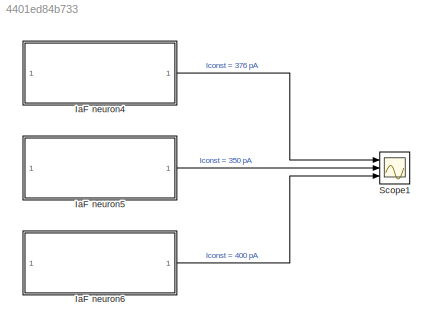
MODEL slx_4401ed84b733
KIND model
CONFIG AbsTol = auto
CONFIG EnableMultiTasking = off
CONFIG FixedStep = auto
CONFIG MaxStep = auto
CONFIG MinStep = auto
CONFIG RelTol = 1e-3
CONFIG SampleTimeConstraint = Unconstrained
CONFIG SolverName = VariableStepAuto
CONFIG StartTime = 0.0
CONFIG StopTime = 0.4
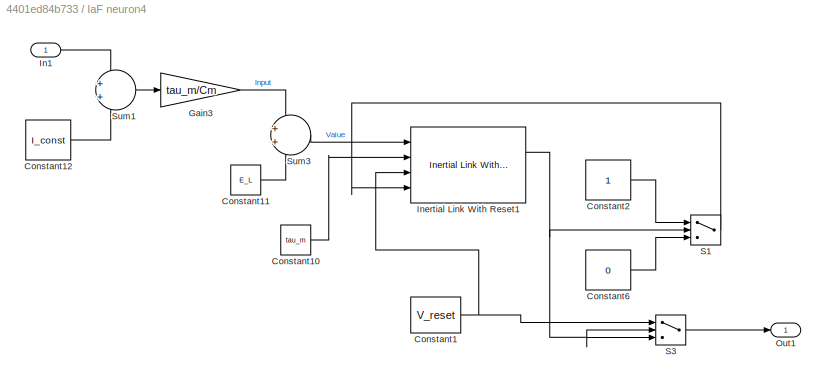
BLOCK [SubSystem] IaF neuron4
  Ports = [1, 1]
  RequestExecContextInheritance = off
BLOCK [Constant] IaF neuron4/Constant1
  Value = V_reset
BLOCK [Constant] IaF neuron4/Constant10
  Value = tau_m
BLOCK [Constant] IaF neuron4/Constant11
  Value = E_L
BLOCK [Constant] IaF neuron4/Constant12
  Value = I_const
BLOCK [Constant] IaF neuron4/Constant2
BLOCK [Constant] IaF neuron4/Constant6
  Value = 0
BLOCK [Gain] IaF neuron4/Gain3
  Gain = tau_m/Cm
BLOCK [Inport] IaF neuron4/In1
BLOCK [Reference] IaF neuron4/Inertial Link With Reset1  REF=NeuroModelerLibrary/Support/Inertial Link With Reset
  Ports = [4, 2]
  SourceBlock = NeuroModelerLibrary/Support/Inertial Link With Reset
  SourceType = SubSystem
BLOCK [Outport] IaF neuron4/Out1
BLOCK [Switch] IaF neuron4/S1
  Threshold = V_th
BLOCK [Switch] IaF neuron4/S3
  Threshold = V_th
BLOCK [Sum] IaF neuron4/Sum1
  Ports = [2, 1]
BLOCK [Sum] IaF neuron4/Sum3
  Ports = [2, 1]
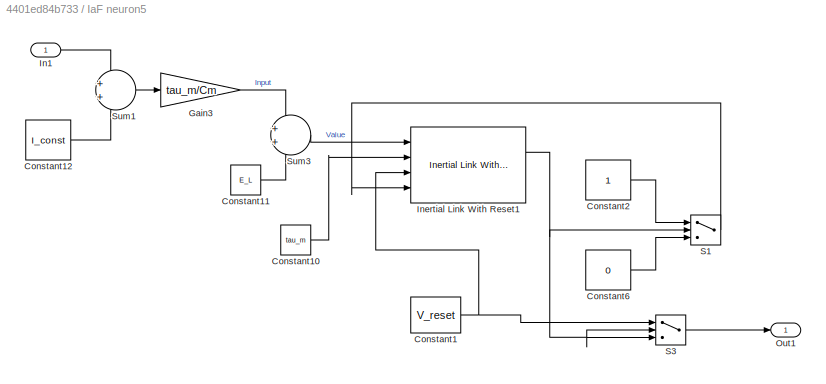
BLOCK [SubSystem] IaF neuron5
  Ports = [1, 1]
  RequestExecContextInheritance = off
BLOCK [Constant] IaF neuron5/Constant1
  Value = V_reset
BLOCK [Constant] IaF neuron5/Constant10
  Value = tau_m
BLOCK [Constant] IaF neuron5/Constant11
  Value = E_L
BLOCK [Constant] IaF neuron5/Constant12
  Value = I_const
BLOCK [Constant] IaF neuron5/Constant2
BLOCK [Constant] IaF neuron5/Constant6
  Value = 0
BLOCK [Gain] IaF neuron5/Gain3
  Gain = tau_m/Cm
BLOCK [Inport] IaF neuron5/In1
BLOCK [Reference] IaF neuron5/Inertial Link With Reset1  REF=NeuroModelerLibrary/Support/Inertial Link With Reset
  Ports = [4, 2]
  SourceBlock = NeuroModelerLibrary/Support/Inertial Link With Reset
  SourceType = SubSystem
BLOCK [Outport] IaF neuron5/Out1
BLOCK [Switch] IaF neuron5/S1
  Threshold = V_th
BLOCK [Switch] IaF neuron5/S3
  Threshold = V_th
BLOCK [Sum] IaF neuron5/Sum1
  Ports = [2, 1]
BLOCK [Sum] IaF neuron5/Sum3
  Ports = [2, 1]
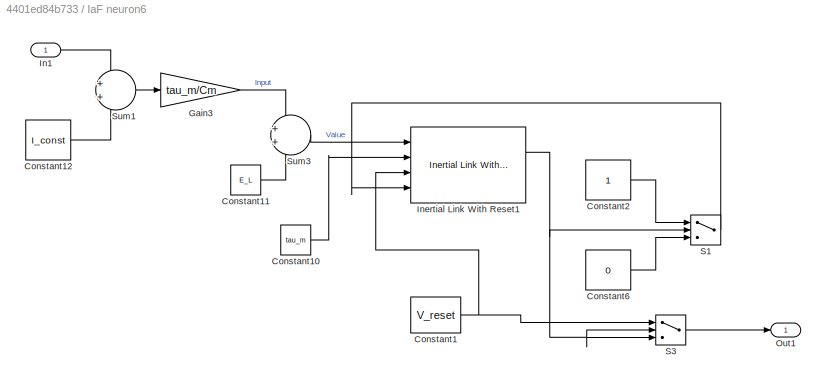
BLOCK [SubSystem] IaF neuron6
  Ports = [1, 1]
  RequestExecContextInheritance = off
BLOCK [Constant] IaF neuron6/Constant1
  Value = V_reset
BLOCK [Constant] IaF neuron6/Constant10
  Value = tau_m
BLOCK [Constant] IaF neuron6/Constant11
  Value = E_L
BLOCK [Constant] IaF neuron6/Constant12
  Value = I_const
BLOCK [Constant] IaF neuron6/Constant2
BLOCK [Constant] IaF neuron6/Constant6
  Value = 0
BLOCK [Gain] IaF neuron6/Gain3
  Gain = tau_m/Cm
BLOCK [Inport] IaF neuron6/In1
BLOCK [Reference] IaF neuron6/Inertial Link With Reset1  REF=NeuroModelerLibrary/Support/Inertial Link With Reset
  Ports = [4, 2]
  SourceBlock = NeuroModelerLibrary/Support/Inertial Link With Reset
  SourceType = SubSystem
BLOCK [Outport] IaF neuron6/Out1
BLOCK [Switch] IaF neuron6/S1
  Threshold = V_th
BLOCK [Switch] IaF neuron6/S3
  Threshold = V_th
BLOCK [Sum] IaF neuron6/Sum1
  Ports = [2, 1]
BLOCK [Sum] IaF neuron6/Sum3
  Ports = [2, 1]
BLOCK [Scope] Scope1
  Floating = off
  NumInputPorts = 3
  Ports = [3]
  ScopeSpecificationString = Simulink.scopes.TimeScopeBlockCfg('CurrentConfiguration', extmgr.ConfigurationSet(extmgr.Configuration('Core','General UI',true),extmgr.Configuration('Core','Source UI',true),extmgr.Configuration('Sources','WiredSimulink',true,'DataLoggingVariableName','Voltages','DataLogging',true,'DataLoggingSaveFormat','StructureWithTime'),extmgr.Configuration('Visuals','Time Domain',true,'SerializedDisplays',{...<+2927ch>
LINE IaF neuron4/Constant10:1 -> IaF neuron4/Inertial Link With Reset1:2
LINE IaF neuron4/Constant11:1 -> IaF neuron4/Sum3:2
LINE IaF neuron4/Constant12:1 -> IaF neuron4/Sum1:2
NET IaF neuron4/Constant1:1 -> IaF neuron4/Inertial Link With Reset1:3, IaF neuron4/S3:1
LINE IaF neuron4/Constant2:1 -> IaF neuron4/S1:1
LINE IaF neuron4/Constant6:1 -> IaF neuron4/S1:3
LINE IaF neuron4/Gain3:1 -> IaF neuron4/Sum3:1
LINE IaF neuron4/In1:1 -> IaF neuron4/Sum1:1
NET IaF neuron4/Inertial Link With Reset1:1 -> IaF neuron4/S1:2, IaF neuron4/S3:2, IaF neuron4/S3:3
LINE IaF neuron4/S1:1 -> IaF neuron4/Inertial Link With Reset1:4
LINE IaF neuron4/S3:1 -> IaF neuron4/Out1:1
LINE IaF neuron4/Sum1:1 -> IaF neuron4/Gain3:1
LINE IaF neuron4/Sum3:1 -> IaF neuron4/Inertial Link With Reset1:1
LINE IaF neuron4:1 -> Scope1:1
LINE IaF neuron5/Constant10:1 -> IaF neuron5/Inertial Link With Reset1:2
LINE IaF neuron5/Constant11:1 -> IaF neuron5/Sum3:2
LINE IaF neuron5/Constant12:1 -> IaF neuron5/Sum1:2
NET IaF neuron5/Constant1:1 -> IaF neuron5/Inertial Link With Reset1:3, IaF neuron5/S3:1
LINE IaF neuron5/Constant2:1 -> IaF neuron5/S1:1
LINE IaF neuron5/Constant6:1 -> IaF neuron5/S1:3
LINE IaF neuron5/Gain3:1 -> IaF neuron5/Sum3:1
LINE IaF neuron5/In1:1 -> IaF neuron5/Sum1:1
NET IaF neuron5/Inertial Link With Reset1:1 -> IaF neuron5/S1:2, IaF neuron5/S3:2, IaF neuron5/S3:3
LINE IaF neuron5/S1:1 -> IaF neuron5/Inertial Link With Reset1:4
LINE IaF neuron5/S3:1 -> IaF neuron5/Out1:1
LINE IaF neuron5/Sum1:1 -> IaF neuron5/Gain3:1
LINE IaF neuron5/Sum3:1 -> IaF neuron5/Inertial Link With Reset1:1
LINE IaF neuron5:1 -> Scope1:2
LINE IaF neuron6/Constant10:1 -> IaF neuron6/Inertial Link With Reset1:2
LINE IaF neuron6/Constant11:1 -> IaF neuron6/Sum3:2
LINE IaF neuron6/Constant12:1 -> IaF neuron6/Sum1:2
NET IaF neuron6/Constant1:1 -> IaF neuron6/Inertial Link With Reset1:3, IaF neuron6/S3:1
LINE IaF neuron6/Constant2:1 -> IaF neuron6/S1:1
LINE IaF neuron6/Constant6:1 -> IaF neuron6/S1:3
LINE IaF neuron6/Gain3:1 -> IaF neuron6/Sum3:1
LINE IaF neuron6/In1:1 -> IaF neuron6/Sum1:1
NET IaF neuron6/Inertial Link With Reset1:1 -> IaF neuron6/S1:2, IaF neuron6/S3:2, IaF neuron6/S3:3
LINE IaF neuron6/S1:1 -> IaF neuron6/Inertial Link With Reset1:4
LINE IaF neuron6/S3:1 -> IaF neuron6/Out1:1
LINE IaF neuron6/Sum1:1 -> IaF neuron6/Gain3:1
LINE IaF neuron6/Sum3:1 -> IaF neuron6/Inertial Link With Reset1:1
LINE IaF neuron6:1 -> Scope1:3
note: NET lines group one-source signal fan-out (src -> all destinations, sorted); 1:1 wires keep LINE
